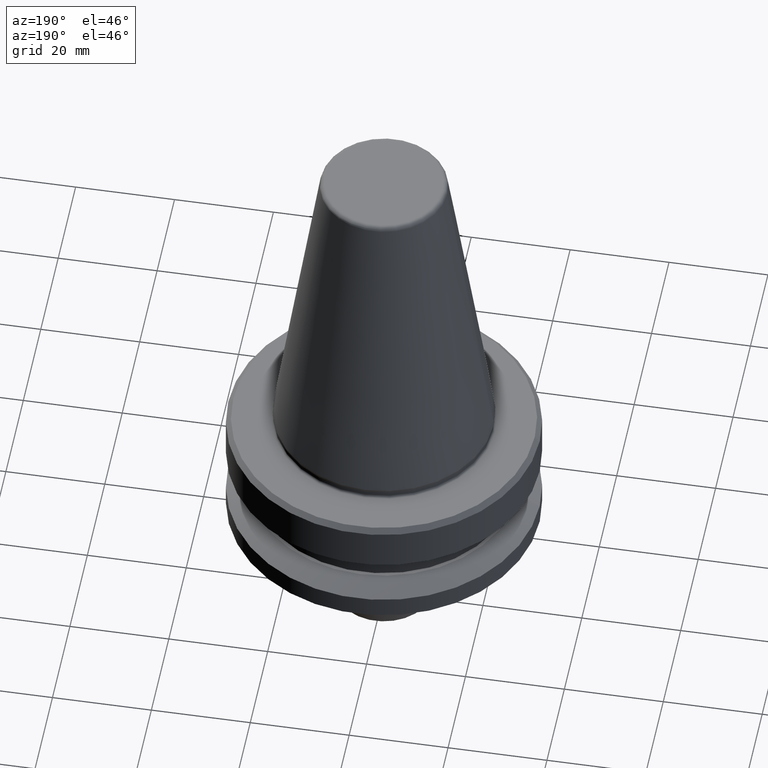
[diagram: clean part render]
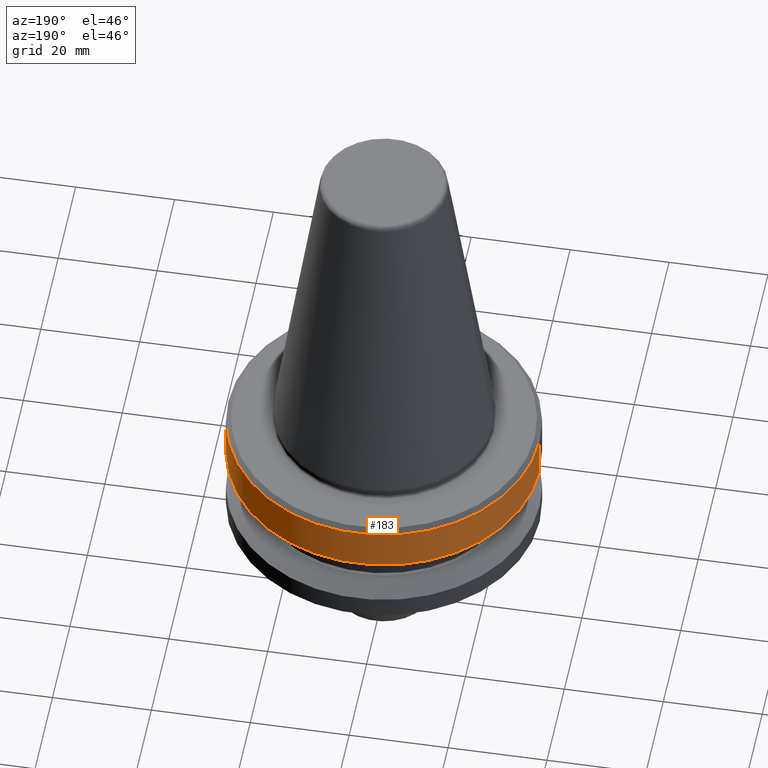
[diagram: same view with one face highlighted and labeled with its STEP entity id]
A machine part, auxiliary view. The second image highlights one B-rep face of the part: STEP entity #183.
In plain terms, the highlighted cylindrical surface (partial cylindrical patch) has radius 31.5 mm, axis along (-0, -0, 1).
Its self-contained STEP definition (entity closure, byte-faithful):
#3 = CARTESIAN_POINT ( 'NONE',  ( 31.49999999999986100, 0.0000000000000000000, -11.59985799368423700 ) ) ;
#22 = EDGE_CURVE ( 'NONE', #679, #608, #25, .T. ) ;
#25 = LINE ( 'NONE', #258, #659 ) ;
#41 = VERTEX_POINT ( 'NONE', #765 ) ;
#69 = DIRECTION ( 'NONE',  ( -0.0000000000000000000, -0.0000000000000000000, 1.000000000000000000 ) ) ;
#70 = CIRCLE ( 'NONE', #901, 31.49999999999986100 ) ;
#183 = ADVANCED_FACE ( 'NONE', ( #807 ), #699, .T. ) ;
#214 = EDGE_CURVE ( 'NONE', #680, #41, #494, .T. ) ;
#255 = EDGE_CURVE ( 'NONE', #680, #679, #70, .T. ) ;
#258 = CARTESIAN_POINT ( 'NONE',  ( -31.49999999999986100, 3.857637417314145300E-015, 119.1156155462287700 ) ) ;
#275 = AXIS2_PLACEMENT_3D ( 'NONE', #703, #672, #750 ) ;
#286 = CARTESIAN_POINT ( 'NONE',  ( 0.0000000000000000000, 0.0000000000000000000, -3.000000000000779800 ) ) ;
#385 = ORIENTED_EDGE ( 'NONE', *, *, #214, .F. ) ;
#395 = DIRECTION ( 'NONE',  ( 1.000000000000000000, 0.0000000000000000000, 0.0000000000000000000 ) ) ;
#403 = CIRCLE ( 'NONE', #434, 31.49999999999986100 ) ;
#425 = EDGE_LOOP ( 'NONE', ( #629, #887, #427, #385 ) ) ;
#427 = ORIENTED_EDGE ( 'NONE', *, *, #626, .F. ) ;
#428 = DIRECTION ( 'NONE',  ( -0.0000000000000000000, -0.0000000000000000000, 1.000000000000000000 ) ) ;
#432 = CARTESIAN_POINT ( 'NONE',  ( -31.49999999999986100, 3.857637417314145300E-015, -11.59985799368423700 ) ) ;
#434 = AXIS2_PLACEMENT_3D ( 'NONE', #286, #428, #1001 ) ;
#494 = LINE ( 'NONE', #965, #826 ) ;
#562 = CARTESIAN_POINT ( 'NONE',  ( 0.0000000000000000000, 0.0000000000000000000, -11.59985799368423700 ) ) ;
#608 = VERTEX_POINT ( 'NONE', #983 ) ;
#626 = EDGE_CURVE ( 'NONE', #41, #608, #403, .T. ) ;
#629 = ORIENTED_EDGE ( 'NONE', *, *, #255, .T. ) ;
#659 = VECTOR ( 'NONE', #69, 1000.000000000000000 ) ;
#672 = DIRECTION ( 'NONE',  ( -0.0000000000000000000, -0.0000000000000000000, 1.000000000000000000 ) ) ;
#679 = VERTEX_POINT ( 'NONE', #432 ) ;
#680 = VERTEX_POINT ( 'NONE', #3 ) ;
#699 = CYLINDRICAL_SURFACE ( 'NONE', #275, 31.49999999999986100 ) ;
#703 = CARTESIAN_POINT ( 'NONE',  ( 0.0000000000000000000, 0.0000000000000000000, 119.1156155462287700 ) ) ;
#750 = DIRECTION ( 'NONE',  ( 1.000000000000000000, 0.0000000000000000000, 0.0000000000000000000 ) ) ;
#765 = CARTESIAN_POINT ( 'NONE',  ( 31.49999999999986100, 0.0000000000000000000, -3.000000000000779800 ) ) ;
#798 = DIRECTION ( 'NONE',  ( -0.0000000000000000000, -0.0000000000000000000, 1.000000000000000000 ) ) ;
#807 = FACE_OUTER_BOUND ( 'NONE', #425, .T. ) ;
#826 = VECTOR ( 'NONE', #798, 1000.000000000000000 ) ;
#842 = DIRECTION ( 'NONE',  ( -0.0000000000000000000, -0.0000000000000000000, 1.000000000000000000 ) ) ;
#887 = ORIENTED_EDGE ( 'NONE', *, *, #22, .T. ) ;
#901 = AXIS2_PLACEMENT_3D ( 'NONE', #562, #842, #395 ) ;
#965 = CARTESIAN_POINT ( 'NONE',  ( 31.49999999999986100, 0.0000000000000000000, 119.1156155462287700 ) ) ;
#983 = CARTESIAN_POINT ( 'NONE',  ( -31.49999999999986100, 3.857637417314145300E-015, -3.000000000000779800 ) ) ;
#1001 = DIRECTION ( 'NONE',  ( 1.000000000000000000, 0.0000000000000000000, 0.0000000000000000000 ) ) ;